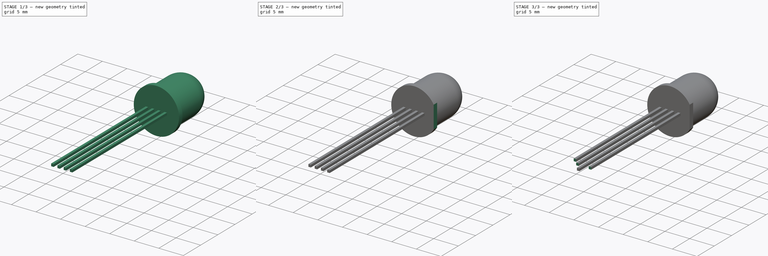
[diagram: build sequence overview — one tinted view per stage of 3, left to right]
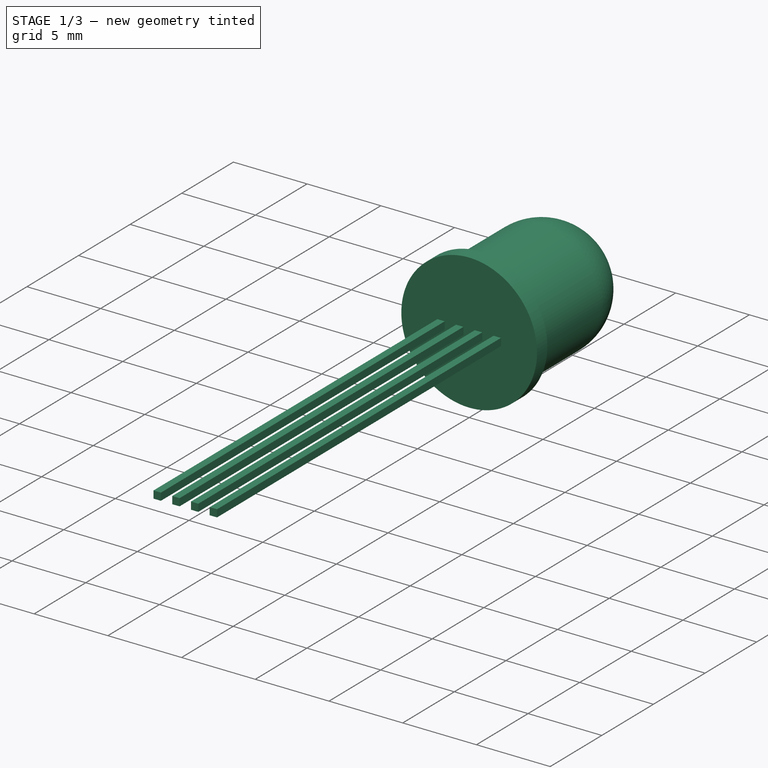
[diagram: stage 1 of 3 — iso view after this stage's code; geometry added in this stage tinted green]
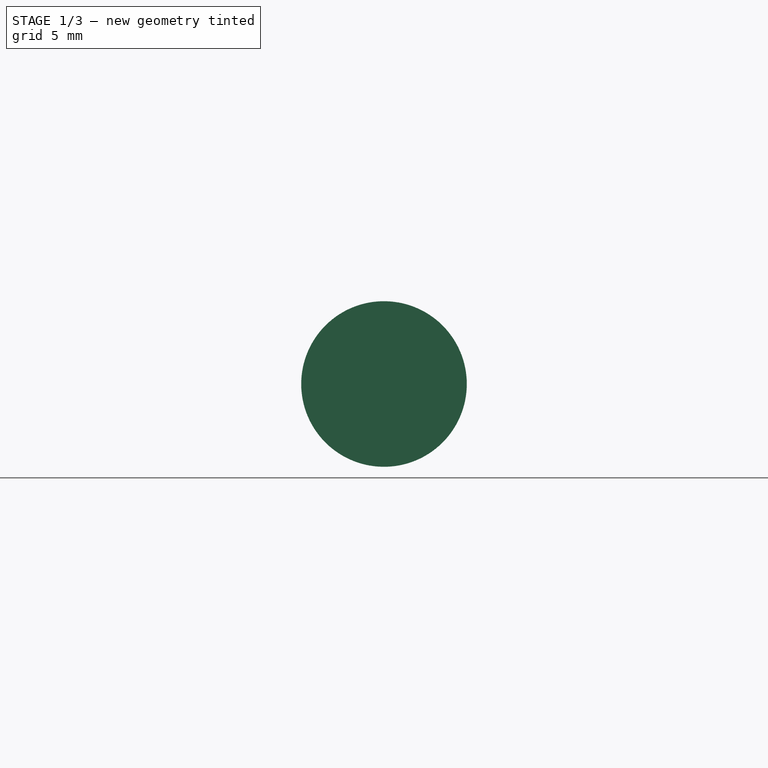
[diagram: stage 1 of 3 — front view after this stage's code; geometry added in this stage tinted green]
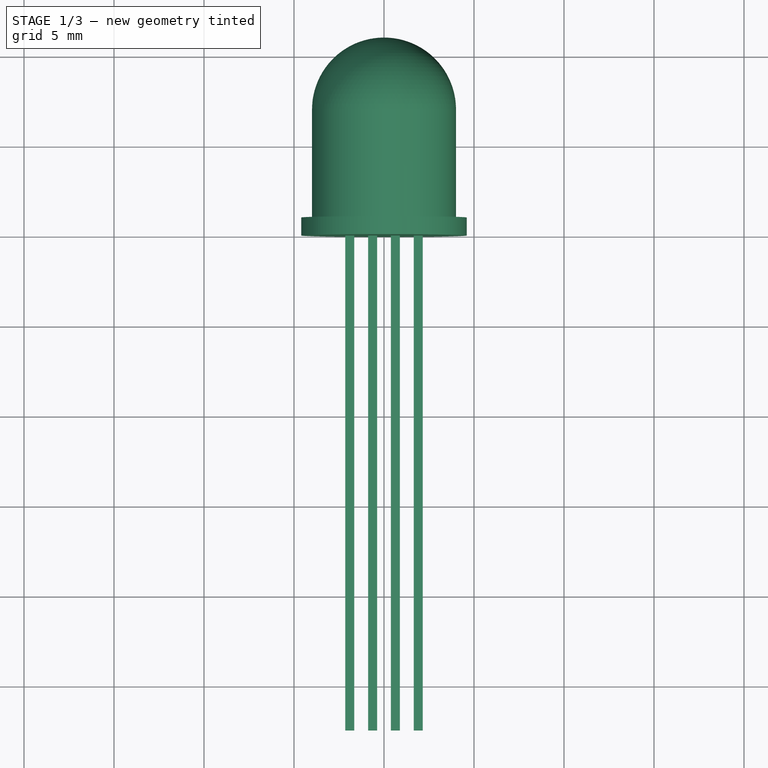
[diagram: stage 1 of 3 — top view after this stage's code; geometry added in this stage tinted green]
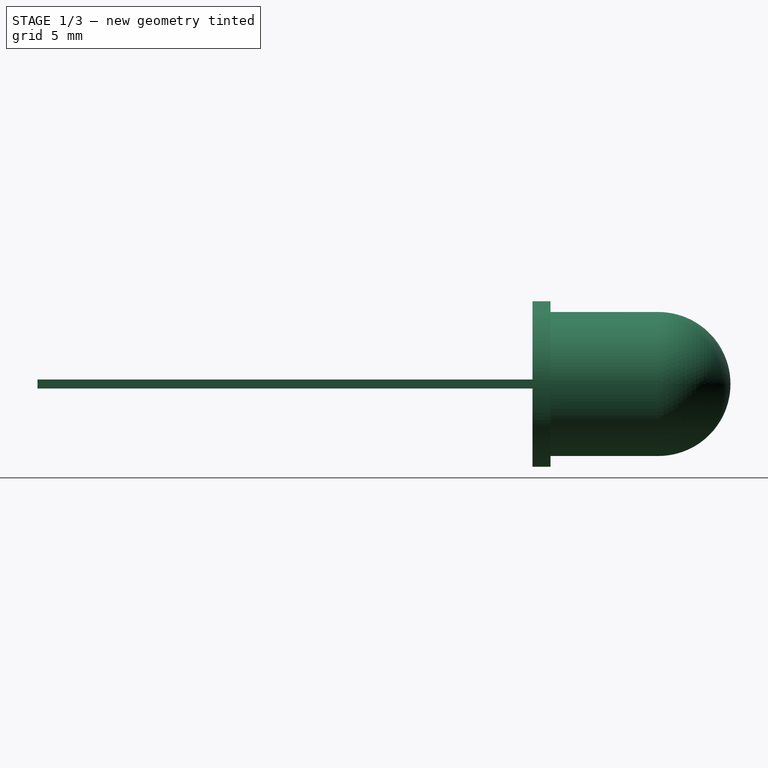
[diagram: stage 1 of 3 — right view after this stage's code; geometry added in this stage tinted green]
FCSTD DOCUMENT  (FreeCAD 0.19R24267 +99 (Git))
Label: ws2812d-f8
License: All rights reserved
LicenseURL: http://en.wikipedia.org/wiki/All_rights_reserved
objects: Sketcher::SketchObject×5, PartDesign::Pocket×3, PartDesign::Revolution×1, PartDesign::Pad×1, PartDesign::CoordinateSystem×1, PartDesign::Body×1
note: 17 computed .brp shape members not serialized (recipe doc carries the construction recipe); baked Part::Feature solids carry a one-line shape summary decoded from their .brp

FEATURE [Sketcher::SketchObject] Sketch
  FullyConstrained = true
  MapMode = 5
  Support = -> [XY_Plane]
  sketch-geometry (7):
    g0: ArcOfCircle CenterX=0 CenterY=7 CenterZ=0 NormalX=0 NormalY=0 NormalZ=1 AngleXU=0 Radius=4 StartAngle=0 EndAngle=1.5708
    g1: LineSegment StartX=0 StartY=7 StartZ=0 EndX=4 EndY=7 EndZ=0
    g2: LineSegment StartX=4 StartY=7 StartZ=0 EndX=4 EndY=1 EndZ=0
    g3: LineSegment StartX=4 StartY=1 StartZ=0 EndX=4.6 EndY=1 EndZ=0
    g4: LineSegment StartX=4.6 StartY=1 StartZ=0 EndX=4.6 EndY=0 EndZ=0
    g5: LineSegment StartX=4.6 StartY=0 StartZ=0 EndX=0 EndY=0 EndZ=0
    g6: LineSegment StartX=0 StartY=0 StartZ=0 EndX=2e-16 EndY=11 EndZ=0
  constraints (20):
    c: PointOnObject(g0,g-2)
    c: PointOnObject(g0,g-2)
    c: Radius(g0) = 4
    c: Coincident(g1,g0)
    c: Horizontal(g1)
    c: Coincident(g0,g1)
    c: Coincident(g2,g0)
    c: Vertical(g2)
    c: Coincident(g3,g2)
    c: Horizontal(g3)
    c: Coincident(g4,g3)
    c: PointOnObject(g4,g-1)
    c: Vertical(g4)
    c: Coincident(g5,g4)
    c: Coincident(g5,g-1)
    c: DistanceY(g4,g4) = 1
    c: Coincident(g6,g5)
    c: Coincident(g6,g0)
    c: DistanceY(g6,g6) = 11
    c: DistanceX(g5,g4) = 4.6
FEATURE [PartDesign::Revolution] Revolution
  Angle = 360
  Axis = (0,1,0)
  Base = (0,0,0)
  Profile = -> Sketch
  ReferenceAxis = -> Sketch [V_Axis]
FEATURE [Sketcher::SketchObject] Sketch001
  FullyConstrained = true
  MapMode = 5
  Placement = pos=(0,0,0) rot=(1,0,0;1.5708rad)
  Support = -> [Revolution]
  sketch-geometry (16):
    g0: LineSegment StartX=0.385 StartY=0.25 StartZ=0 EndX=0.885 EndY=0.25 EndZ=0
    g1: LineSegment StartX=0.885 StartY=0.25 StartZ=0 EndX=0.885 EndY=-0.25 EndZ=0
    g2: LineSegment StartX=0.885 StartY=-0.25 StartZ=0 EndX=0.385 EndY=-0.25 EndZ=0
    g3: LineSegment StartX=0.385 StartY=-0.25 StartZ=0 EndX=0.385 EndY=0.25 EndZ=0
    g4: LineSegment StartX=1.655 StartY=0.25 StartZ=0 EndX=2.155 EndY=0.25 EndZ=0
    g5: LineSegment StartX=2.155 StartY=0.25 StartZ=0 EndX=2.155 EndY=-0.25 EndZ=0
    g6: LineSegment StartX=2.155 StartY=-0.25 StartZ=0 EndX=1.655 EndY=-0.25 EndZ=0
    g7: LineSegment StartX=1.655 StartY=-0.25 StartZ=0 EndX=1.655 EndY=0.25 EndZ=0
    g8: LineSegment StartX=-0.385 StartY=0.25 StartZ=0 EndX=-0.885 EndY=0.25 EndZ=0
    g9: LineSegment StartX=-0.885 StartY=0.25 StartZ=0 EndX=-0.885 EndY=-0.25 EndZ=0
    g10: LineSegment StartX=-0.885 StartY=-0.25 StartZ=0 EndX=-0.385 EndY=-0.25 EndZ=0
    g11: LineSegment StartX=-0.385 StartY=-0.25 StartZ=0 EndX=-0.385 EndY=0.25 EndZ=0
    g12: LineSegment StartX=-1.655 StartY=0.25 StartZ=0 EndX=-2.155 EndY=0.25 EndZ=0
    g13: LineSegment StartX=-2.155 StartY=0.25 StartZ=0 EndX=-2.155 EndY=-0.25 EndZ=0
    g14: LineSegment StartX=-2.155 StartY=-0.25 StartZ=0 EndX=-1.655 EndY=-0.25 EndZ=0
    g15: LineSegment StartX=-1.655 StartY=-0.25 StartZ=0 EndX=-1.655 EndY=0.25 EndZ=0
  constraints (42):
    c: Coincident(g0,g1)
    c: Coincident(g1,g2)
    c: Coincident(g2,g3)
    c: Coincident(g3,g0)
    c: Horizontal(g0)
    c: Horizontal(g2)
    c: Vertical(g3)
    c: Coincident(g4,g5)
    c: Coincident(g5,g6)
    c: Coincident(g6,g7)
    c: Coincident(g7,g4)
    c: Horizontal(g4)
    c: Horizontal(g6)
    c: Vertical(g7)
    c: Coincident(g8,g9)
    c: Coincident(g9,g10)
    c: Coincident(g10,g11)
    c: Coincident(g11,g8)
    c: Horizontal(g8)
    c: Horizontal(g10)
    c: Vertical(g9)
    c: Coincident(g12,g13)
    c: Coincident(g13,g14)
    c: Coincident(g14,g15)
    c: Coincident(g15,g12)
    c: Horizontal(g12)
    c: Horizontal(g14)
    c: Vertical(g13)
    c: DistanceX(g14,g14) = 0.5
    c: Equal(g8,g12)
    c: Equal(g0,g12)
    c: Equal(g12,g4)
    c: DistanceY(g15,g15) = 0.5
    c: Equal(g9,g13)
    c: Symmetric(g12,g14,g-1)
    c: Symmetric(g8,g10,g-1)
    c: Symmetric(g0,g1,g-1)
    c: Symmetric(g4,g5,g-1)
    c: Symmetric(g12,g4,g-2)
    c: Symmetric(g8,g0,g-2)
    c: DistanceX(g10,g1) = 1.27
    c: DistanceX(g14,g10) = 1.27
FEATURE [PartDesign::Pad] Pad
  BaseFeature = -> Revolution
  Direction = (1,1,1)
  Length = 27.5
  Length2 = 100
  Profile = -> Sketch001
  Type = 0
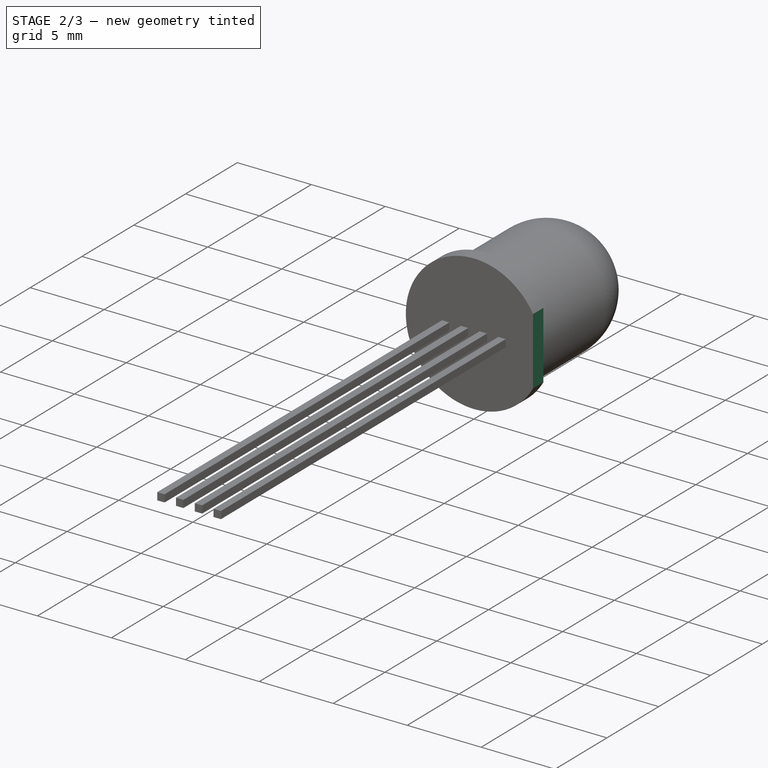
[diagram: stage 2 of 3 — iso view after this stage's code; geometry added in this stage tinted green]
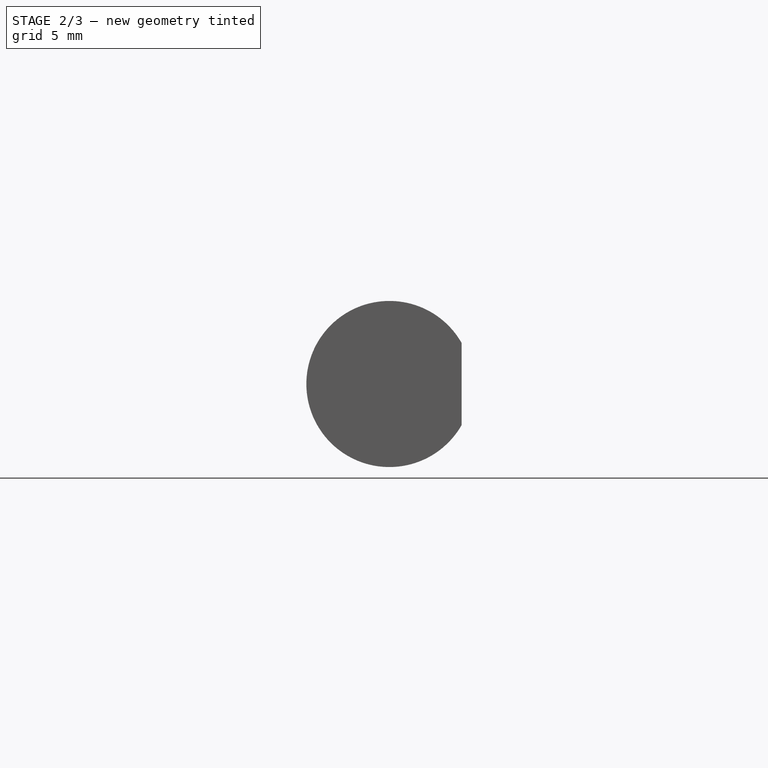
[diagram: stage 2 of 3 — front view after this stage's code; geometry added in this stage tinted green]
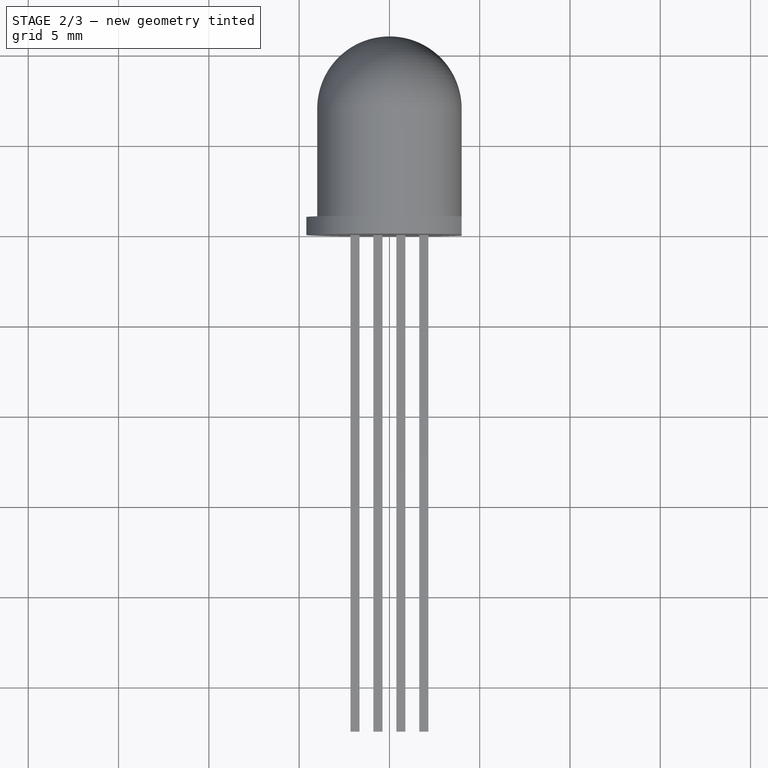
[diagram: stage 2 of 3 — top view after this stage's code; geometry added in this stage tinted green]
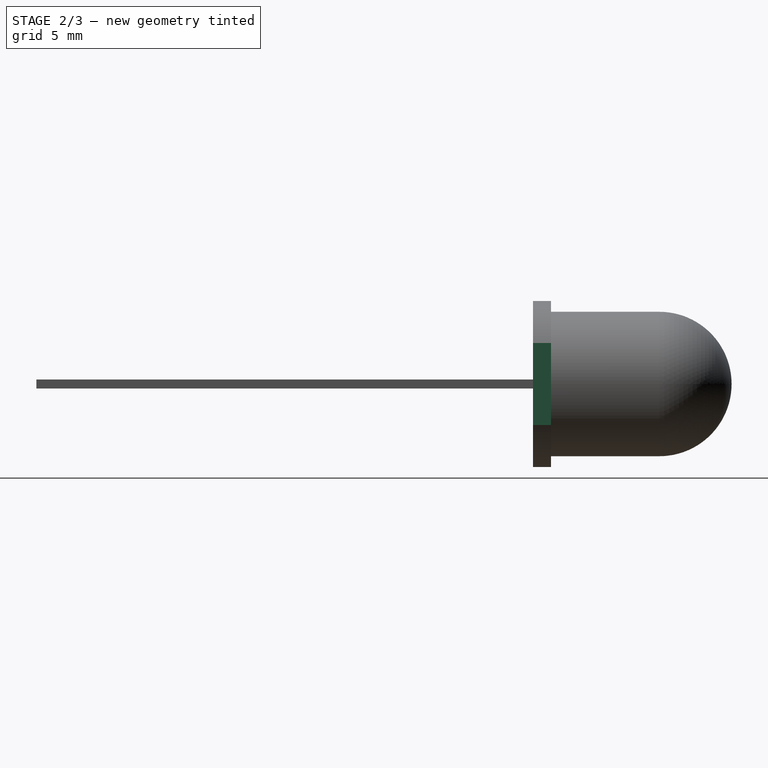
[diagram: stage 2 of 3 — right view after this stage's code; geometry added in this stage tinted green]
FEATURE [Sketcher::SketchObject] Sketch002
  FullyConstrained = false
  MapMode = 5
  Placement = pos=(0,0,0) rot=(1,0,0;1.5708rad)
  Support = -> [Pad]
  sketch-geometry (5):
    g0: GeomPoint X=4 Y=0 Z=0
    g1: LineSegment StartX=4 StartY=3.04911 StartZ=0 EndX=4 EndY=-3.04911 EndZ=0
    g2: LineSegment StartX=4 StartY=-3.04911 StartZ=0 EndX=5 EndY=-3.04911 EndZ=0
    g3: LineSegment StartX=5 StartY=-3.04911 StartZ=0 EndX=5 EndY=3.04911 EndZ=0
    g4: LineSegment StartX=5 StartY=3.04911 StartZ=0 EndX=4 EndY=3.04911 EndZ=0
  constraints (12):
    c: PointOnObject(g0,g-1)
    c: DistanceX(g-1,g0) = 4
    c: Coincident(g2,g1)
    c: Horizontal(g2)
    c: Coincident(g3,g2)
    c: Vertical(g3)
    c: Coincident(g4,g3)
    c: Coincident(g4,g1)
    c: Horizontal(g4)
    c: PointOnObject(g0,g1)
    c: DistanceX(g4,g4) = 1
    c: Symmetric(g1,g1,g-1)
FEATURE [PartDesign::Pocket] Pocket
  BaseFeature = -> Pad
  Length = 5
  Length2 = 100
  Profile = -> Sketch002
  Type = 0
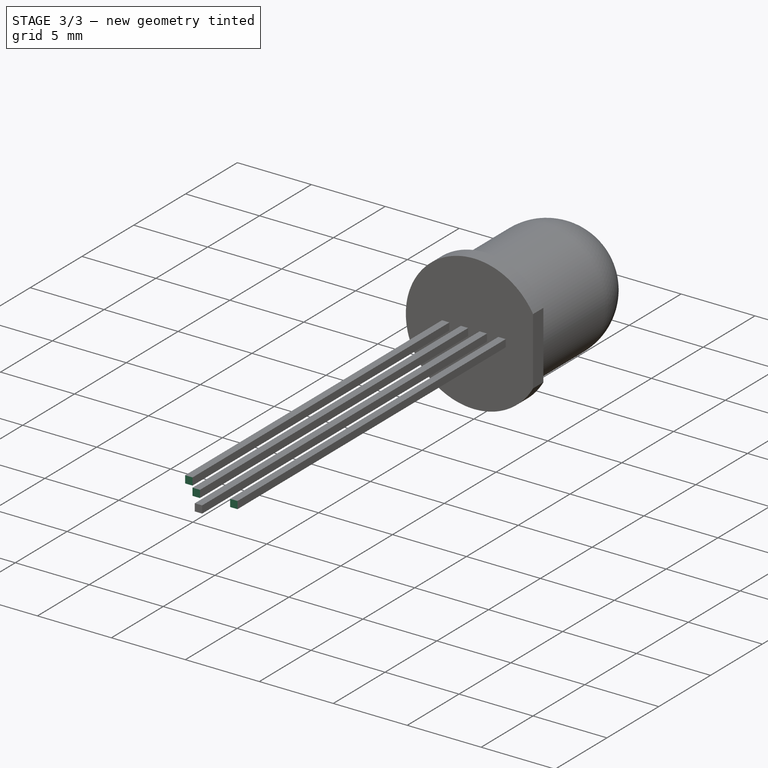
[diagram: stage 3 of 3 — iso view after this stage's code; geometry added in this stage tinted green]
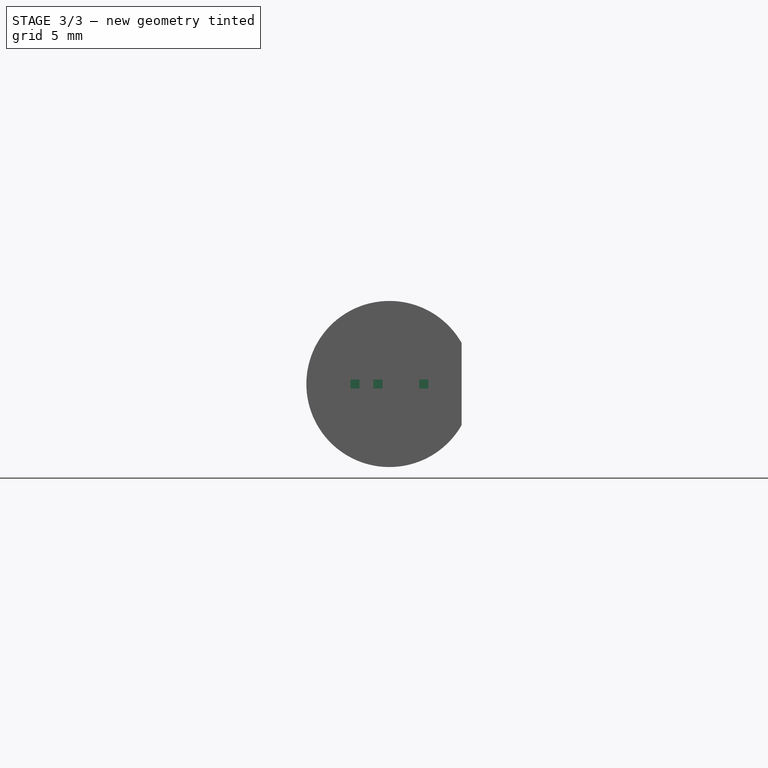
[diagram: stage 3 of 3 — front view after this stage's code; geometry added in this stage tinted green]
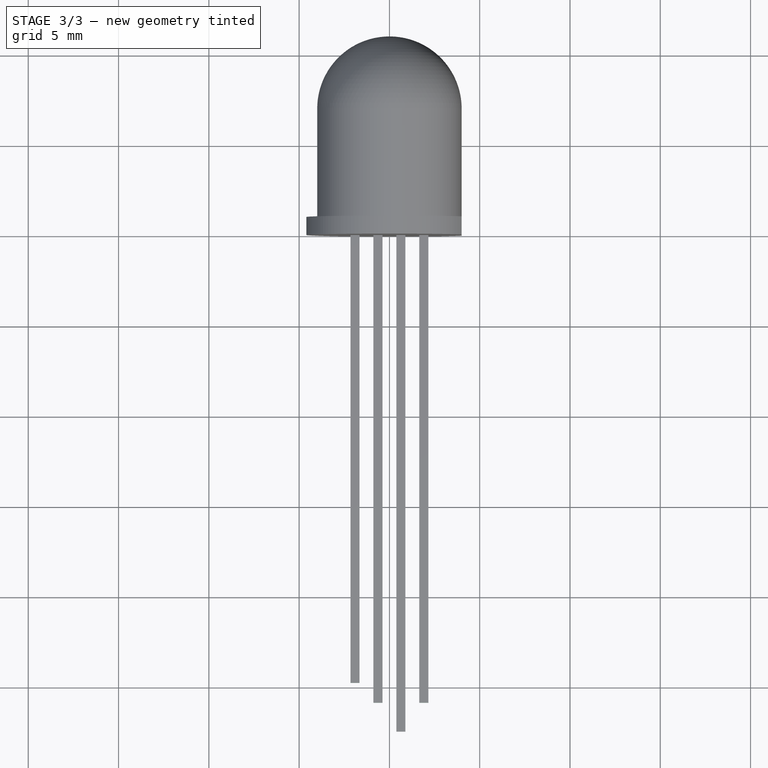
[diagram: stage 3 of 3 — top view after this stage's code; geometry added in this stage tinted green]
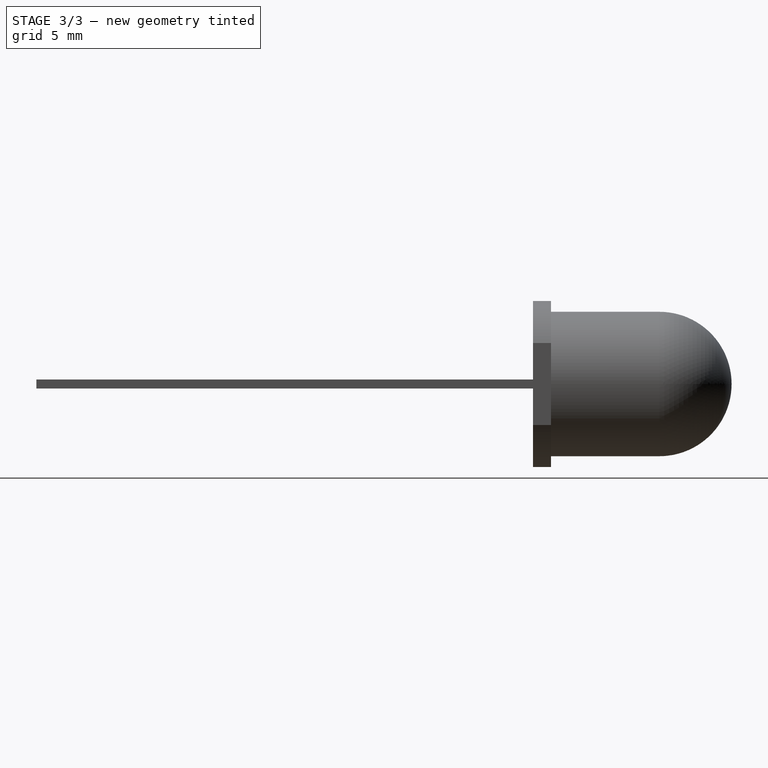
[diagram: stage 3 of 3 — right view after this stage's code; geometry added in this stage tinted green]
FEATURE [Sketcher::SketchObject] Sketch003
  ExternalGeometry = -> [Pocket]
  FullyConstrained = true
  MapMode = 5
  Placement = pos=(0,-27.5,6.1e-15) rot=(1,0,0;1.5708rad)
  Support = -> [Pocket]
  sketch-geometry (4):
    g0: LineSegment StartX=-2.155 StartY=0.25 StartZ=0 EndX=-1.655 EndY=0.25 EndZ=0
    g1: LineSegment StartX=-1.655 StartY=0.25 StartZ=0 EndX=-1.655 EndY=-0.25 EndZ=0
    g2: LineSegment StartX=-1.655 StartY=-0.25 StartZ=0 EndX=-2.155 EndY=-0.25 EndZ=0
    g3: LineSegment StartX=-2.155 StartY=-0.25 StartZ=0 EndX=-2.155 EndY=0.25 EndZ=0
  constraints (10):
    c: Coincident(g0,g1)
    c: Coincident(g1,g2)
    c: Coincident(g2,g3)
    c: Coincident(g3,g0)
    c: Horizontal(g0)
    c: Horizontal(g2)
    c: Vertical(g1)
    c: Vertical(g3)
    c: Coincident(g0,g-3)
    c: Coincident(g1,g-4)
FEATURE [PartDesign::Pocket] Pocket001
  BaseFeature = -> Pocket
  Length = 2.7
  Length2 = 100
  Profile = -> Sketch003
  Type = 0
FEATURE [Sketcher::SketchObject] Sketch004
  ExternalGeometry = -> [Pocket001]
  FullyConstrained = true
  MapMode = 5
  Placement = pos=(0,-27.5,6.1e-15) rot=(1,0,0;1.5708rad)
  Support = -> [Pocket001]
  sketch-geometry (8):
    g0: LineSegment StartX=-0.885 StartY=0.25 StartZ=0 EndX=-0.385 EndY=0.25 EndZ=0
    g1: LineSegment StartX=-0.385 StartY=0.25 StartZ=0 EndX=-0.385 EndY=-0.25 EndZ=0
    g2: LineSegment StartX=-0.385 StartY=-0.25 StartZ=0 EndX=-0.885 EndY=-0.25 EndZ=0
    g3: LineSegment StartX=-0.885 StartY=-0.25 StartZ=0 EndX=-0.885 EndY=0.25 EndZ=0
    g4: LineSegment StartX=2.155 StartY=-0.25 StartZ=0 EndX=1.655 EndY=-0.25 EndZ=0
    g5: LineSegment StartX=1.655 StartY=-0.25 StartZ=0 EndX=1.655 EndY=0.25 EndZ=0
    g6: LineSegment StartX=1.655 StartY=0.25 StartZ=0 EndX=2.155 EndY=0.25 EndZ=0
    g7: LineSegment StartX=2.155 StartY=0.25 StartZ=0 EndX=2.155 EndY=-0.25 EndZ=0
  constraints (20):
    c: Coincident(g0,g1)
    c: Coincident(g1,g2)
    c: Coincident(g2,g3)
    c: Coincident(g3,g0)
    c: Horizontal(g0)
    c: Horizontal(g2)
    c: Vertical(g1)
    c: Vertical(g3)
    c: Coincident(g0,g-3)
    c: Coincident(g1,g-4)
    c: Coincident(g4,g5)
    c: Coincident(g5,g6)
    c: Coincident(g6,g7)
    c: Coincident(g7,g4)
    c: Horizontal(g4)
    c: Horizontal(g6)
    c: Vertical(g5)
    c: Vertical(g7)
    c: Coincident(g4,g-6)
    c: Coincident(g5,g-5)
FEATURE [PartDesign::Pocket] Pocket002
  BaseFeature = -> Pocket001
  Length = 1.6
  Length2 = 100
  Profile = -> Sketch004
  Type = 0
FEATURE [PartDesign::CoordinateSystem] Local_CS
  AttacherType = Attacher::AttachEngine3D
  MapMode = 45
  Placement = pos=(-0.122799,0,-1e-16) rot=(-1,0,0;1.5708rad)
  Support = -> [Pocket002]
FEATURE [PartDesign::Body] Body
  Group = -> [Sketch,Revolution,Sketch001,Pad,Sketch002,Pocket,Sketch003,Pocket001,Sketch004,Pocket002,Local_CS]
  Origin = -> Origin
  Tip = -> Pocket002
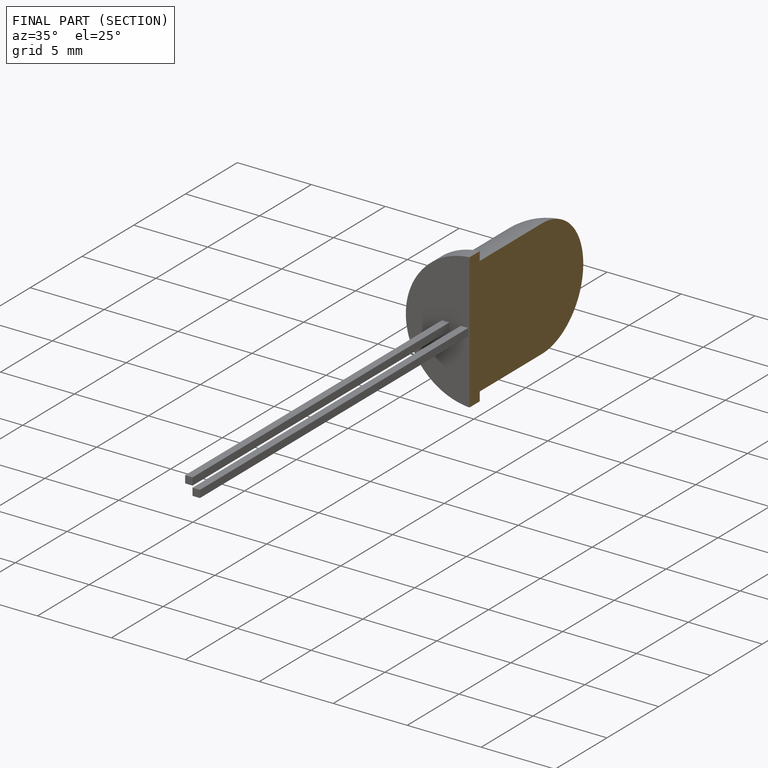
[diagram: finished part — half-section view (interior)]
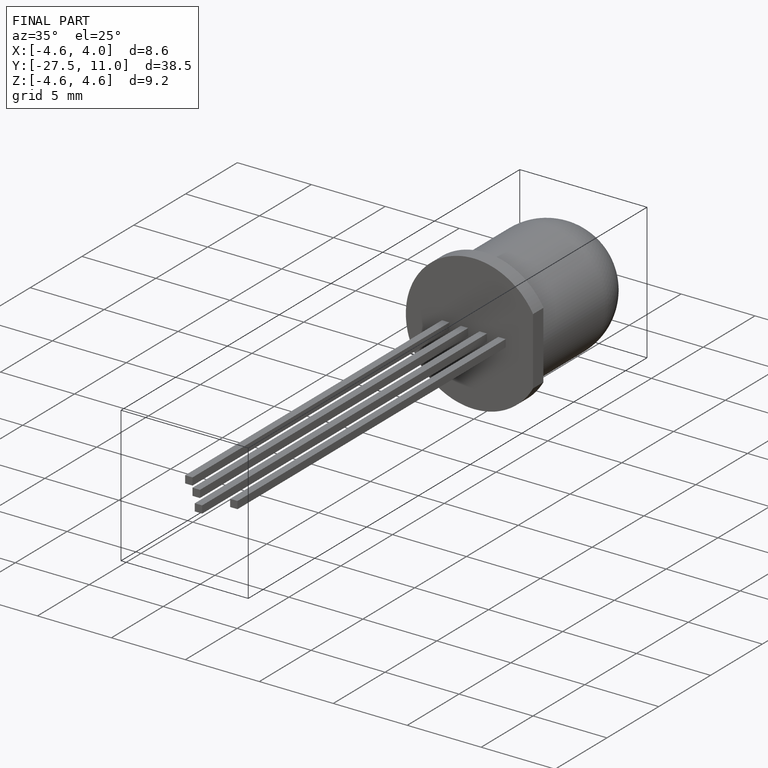
[diagram: finished part — iso view with bounding-box wireframe]
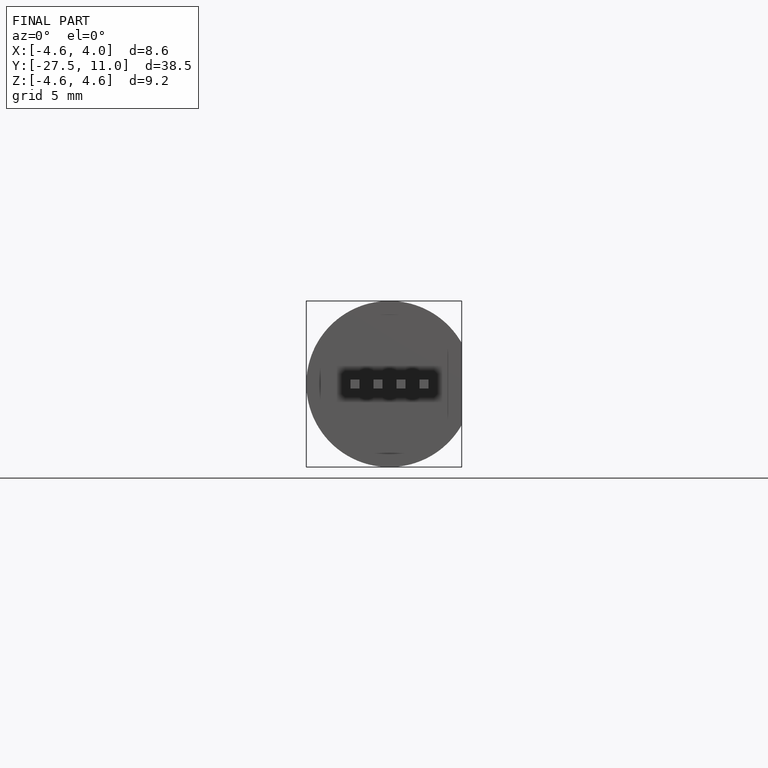
[diagram: finished part — front view with bounding-box wireframe]
